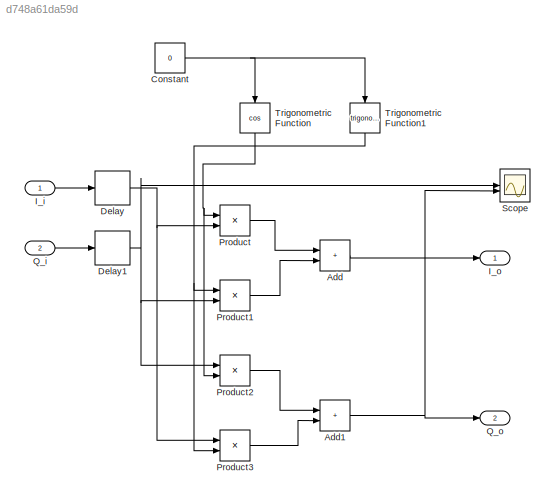
MODEL slx_d748a61da59d
KIND model
CONFIG AbsTol = auto
CONFIG EnableMultiTasking = off
CONFIG FixedStep = auto
CONFIG MaxStep = auto
CONFIG MinStep = auto
CONFIG RelTol = 1e-3
CONFIG SampleTimeConstraint = Unconstrained
CONFIG SolverName = VariableStepAuto
CONFIG StartTime = 0.0
CONFIG StopTime = 10.0
BLOCK [Sum] Add
  IconShape = rectangular
BLOCK [Sum] Add1
  IconShape = rectangular
BLOCK [Constant] Constant
  Value = 0
BLOCK [Delay] Delay
  InitialCondition = 0
  InputPortMap = u0
BLOCK [Delay] Delay1
  InitialCondition = 0
  InputPortMap = u0
BLOCK [Inport] I_i
BLOCK [Outport] I_o
BLOCK [Product] Product
BLOCK [Product] Product1
BLOCK [Product] Product2
BLOCK [Product] Product3
BLOCK [Inport] Q_i
  Port = 2
BLOCK [Outport] Q_o
  Port = 2
BLOCK [Scope] Scope
  Floating = off
  NumInputPorts = 2
  ScopeSpecificationString = Simulink.scopes.TimeScopeBlockCfg('CurrentConfiguration', extmgr.ConfigurationSet(extmgr.Configuration('Core','General UI',true),extmgr.Configuration('Core','Source UI',true),extmgr.Configuration('Sources','WiredSimulink',true),extmgr.Configuration('Visuals','Time Domain',true,'SerializedDisplays',{struct('MinYLimReal','-1.00000','MaxYLimReal','1.00000','YLabelReal','','MinYLimMag','0.00000','MaxY...<+1333ch>
BLOCK [Trigonometry] Trigonometric Function
  NameLocation = left
  Operator = cos
BLOCK [Trigonometry] Trigonometric Function1
  NameLocation = left
NET Add1:1 -> Q_o:1, Scope:2
LINE Add:1 -> I_o:1
NET Constant:1 -> Trigonometric Function1:1, Trigonometric Function:1
NET Delay1:1 -> Product1:2, Product2:1, Scope:1
NET Delay:1 -> Product3:1, Product:2
LINE I_i:1 -> Delay:1
LINE Product1:1 -> Add:2
LINE Product2:1 -> Add1:1
LINE Product3:1 -> Add1:2
LINE Product:1 -> Add:1
LINE Q_i:1 -> Delay1:1
NET Trigonometric Function1:1 -> Product1:1, Product3:2
NET Trigonometric Function:1 -> Product2:2, Product:1
note: NET lines group one-source signal fan-out (src -> all destinations, sorted); 1:1 wires keep LINE
